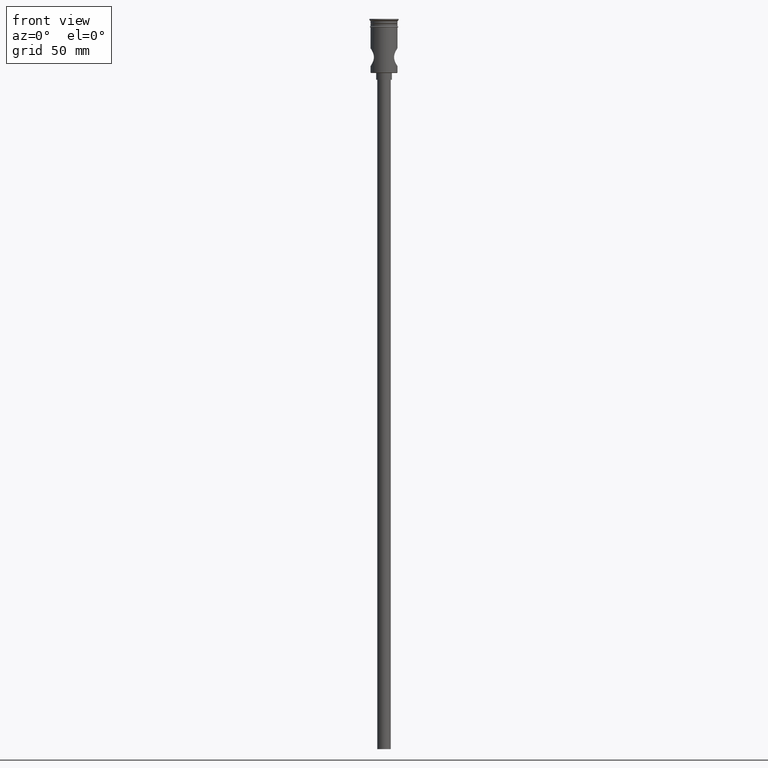
[diagram: clean part render]
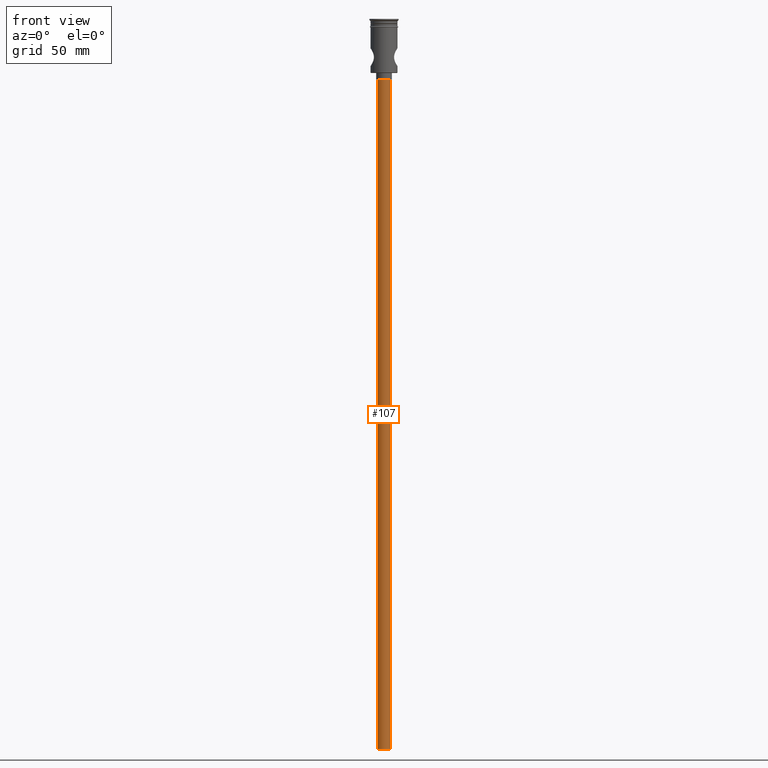
[diagram: same view with one face highlighted and labeled with its STEP entity id]
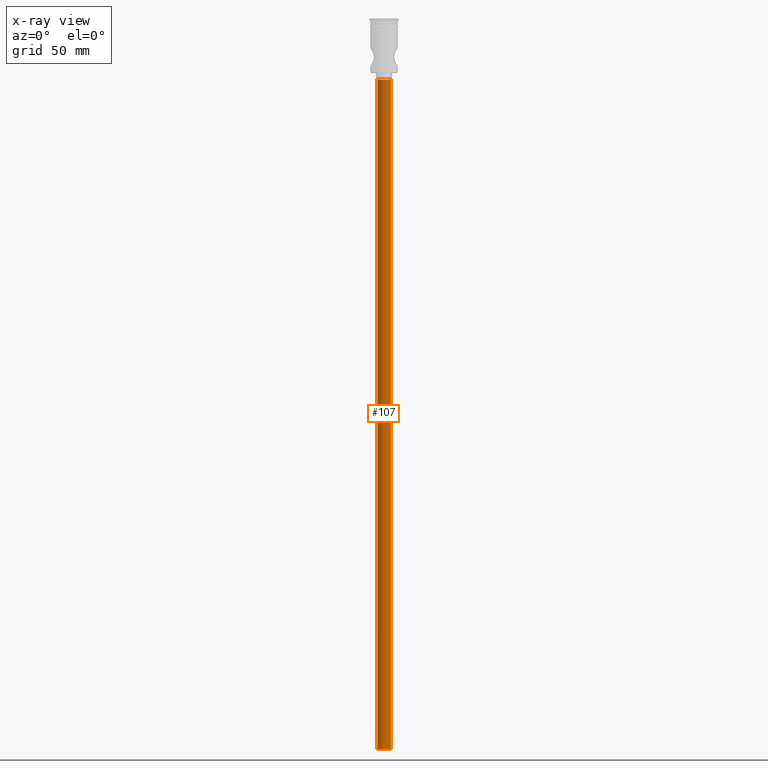
[diagram: x-ray of the same camera — body ghosted, the highlighted face saturated]
A machine part, front view. The second image highlights one B-rep face of the part: STEP entity #107.
The next image is the same camera in x-ray: the body ghosted, the highlighted face saturated — about 0% of this face is hidden behind the body in this view.
In plain terms, the highlighted cylindrical surface (edge-blend (fillet) strip) has radius 3 mm, axis along (-0, -0, 1).
Its self-contained STEP definition (entity closure, byte-faithful):
#49 = VECTOR ( 'NONE', #892, 1000.000000000000000 ) ;
#94 = CARTESIAN_POINT ( 'NONE',  ( 3.000000000000000444, 0.000000000000000000, -324.0000000000000000 ) ) ;
#106 = ORIENTED_EDGE ( 'NONE', *, *, #218, .F. ) ;
#107 = ADVANCED_FACE ( 'NONE', ( #1380 ), #350, .T. ) ;
#121 = DIRECTION ( 'NONE',  ( -0.000000000000000000, -0.000000000000000000, 1.000000000000000000 ) ) ;
#173 = CARTESIAN_POINT ( 'NONE',  ( 3.000000000000000444, 0.000000000000000000, -324.0000000000000000 ) ) ;
#184 = ORIENTED_EDGE ( 'NONE', *, *, #1474, .F. ) ;
#218 = EDGE_CURVE ( 'NONE', #876, #1077, #1095, .T. ) ;
#222 = ORIENTED_EDGE ( 'NONE', *, *, #718, .T. ) ;
#254 = AXIS2_PLACEMENT_3D ( 'NONE', #1169, #121, #608 ) ;
#260 = AXIS2_PLACEMENT_3D ( 'NONE', #1342, #1246, #919 ) ;
#281 = CIRCLE ( 'NONE', #1271, 3.000000000000000444 ) ;
#330 = DIRECTION ( 'NONE',  ( 0.000000000000000000, 0.000000000000000000, -1.000000000000000000 ) ) ;
#332 = CIRCLE ( 'NONE', #260, 3.000000000000000444 ) ;
#337 = LINE ( 'NONE', #94, #49 ) ;
#350 = CYLINDRICAL_SURFACE ( 'NONE', #254, 3.000000000000000444 ) ;
#492 = ORIENTED_EDGE ( 'NONE', *, *, #625, .T. ) ;
#608 = DIRECTION ( 'NONE',  ( 1.000000000000000000, 0.000000000000000000, 0.000000000000000000 ) ) ;
#625 = EDGE_CURVE ( 'NONE', #1278, #1255, #337, .T. ) ;
#708 = CARTESIAN_POINT ( 'NONE',  ( -3.000000000000000444, 3.673940397442060361E-16, -324.0000000000000000 ) ) ;
#718 = EDGE_CURVE ( 'NONE', #1255, #1077, #281, .T. ) ;
#802 = DIRECTION ( 'NONE',  ( -1.000000000000000000, 0.000000000000000000, 0.000000000000000000 ) ) ;
#876 = VERTEX_POINT ( 'NONE', #708 ) ;
#892 = DIRECTION ( 'NONE',  ( -0.000000000000000000, -0.000000000000000000, 1.000000000000000000 ) ) ;
#919 = DIRECTION ( 'NONE',  ( -1.000000000000000000, 0.000000000000000000, 0.000000000000000000 ) ) ;
#991 = CARTESIAN_POINT ( 'NONE',  ( -3.000000000000000444, 3.673940397442060361E-16, -324.0000000000000000 ) ) ;
#1016 = CARTESIAN_POINT ( 'NONE',  ( -3.000000000000000444, 3.673940397442060361E-16, -27.00000000000000000 ) ) ;
#1074 = EDGE_LOOP ( 'NONE', ( #106, #184, #492, #222 ) ) ;
#1077 = VERTEX_POINT ( 'NONE', #1016 ) ;
#1095 = LINE ( 'NONE', #991, #1153 ) ;
#1153 = VECTOR ( 'NONE', #1305, 1000.000000000000000 ) ;
#1169 = CARTESIAN_POINT ( 'NONE',  ( 0.000000000000000000, 0.000000000000000000, -324.0000000000000000 ) ) ;
#1246 = DIRECTION ( 'NONE',  ( 0.000000000000000000, 0.000000000000000000, -1.000000000000000000 ) ) ;
#1255 = VERTEX_POINT ( 'NONE', #1319 ) ;
#1271 = AXIS2_PLACEMENT_3D ( 'NONE', #1360, #330, #802 ) ;
#1278 = VERTEX_POINT ( 'NONE', #173 ) ;
#1305 = DIRECTION ( 'NONE',  ( -0.000000000000000000, -0.000000000000000000, 1.000000000000000000 ) ) ;
#1319 = CARTESIAN_POINT ( 'NONE',  ( 3.000000000000000444, 0.000000000000000000, -27.00000000000000000 ) ) ;
#1342 = CARTESIAN_POINT ( 'NONE',  ( 0.000000000000000000, 0.000000000000000000, -324.0000000000000000 ) ) ;
#1360 = CARTESIAN_POINT ( 'NONE',  ( 0.000000000000000000, 0.000000000000000000, -27.00000000000000000 ) ) ;
#1380 = FACE_OUTER_BOUND ( 'NONE', #1074, .T. ) ;
#1474 = EDGE_CURVE ( 'NONE', #1278, #876, #332, .T. ) ;